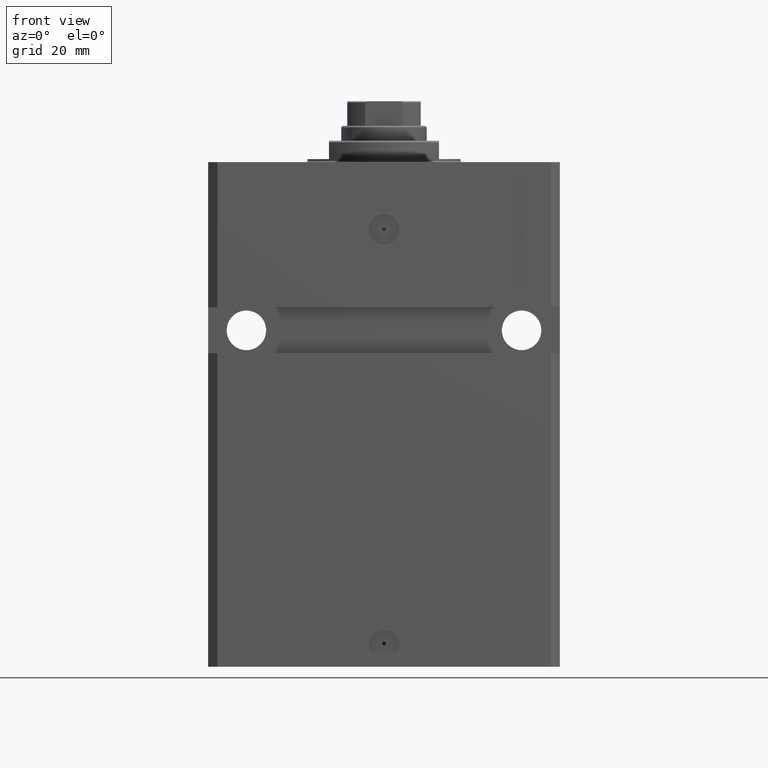
[diagram: clean part render]
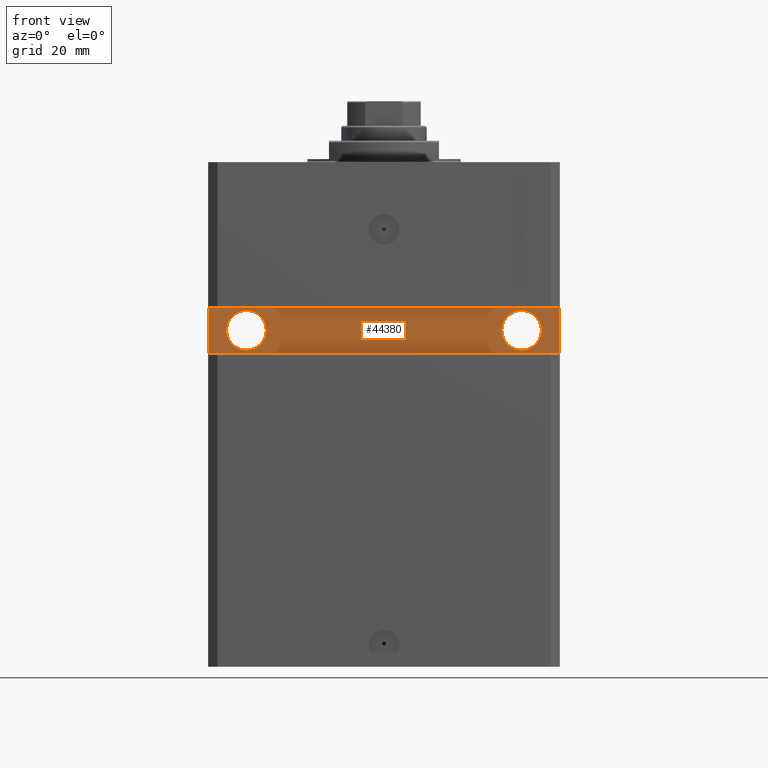
[diagram: same view with one face highlighted and labeled with its STEP entity id]
A machine part, front view. The second image highlights one B-rep face of the part: STEP entity #44380.
In plain terms, the highlighted planar face has unit normal (0, -1, 0).
Its self-contained STEP definition (entity closure, byte-faithful):
#71 = EDGE_CURVE ( 'NONE', #9435, #27141, #9497, .T. ) ;
#757 = ORIENTED_EDGE ( 'NONE', *, *, #71, .F. ) ;
#2630 = DIRECTION ( 'NONE',  ( 1.000000000000000000, 1.206764157201257045E-16, 0.000000000000000000 ) ) ;
#3074 = DIRECTION ( 'NONE',  ( 0.000000000000000000, 0.000000000000000000, -1.000000000000000000 ) ) ;
#3200 = EDGE_CURVE ( 'NONE', #27141, #9435, #18995, .T. ) ;
#3924 = CARTESIAN_POINT ( 'NONE',  ( 57.50000000000000711, -39.99999999999998579, -62.49999999999999289 ) ) ;
#7083 = AXIS2_PLACEMENT_3D ( 'NONE', #32059, #13652, #17609 ) ;
#7158 = ORIENTED_EDGE ( 'NONE', *, *, #3200, .F. ) ;
#8170 = CARTESIAN_POINT ( 'NONE',  ( -44.99999999999998579, -40.00000000000000000, -55.00000000000001421 ) ) ;
#8652 = DIRECTION ( 'NONE',  ( 1.000000000000000000, 0.000000000000000000, 0.000000000000000000 ) ) ;
#9340 = CARTESIAN_POINT ( 'NONE',  ( 4.842396851142260860E-15, -39.99999999999999289, 0.000000000000000000 ) ) ;
#9435 = VERTEX_POINT ( 'NONE', #44839 ) ;
#9497 = CIRCLE ( 'NONE', #38874, 6.499999999999999112 ) ;
#9927 = ORIENTED_EDGE ( 'NONE', *, *, #21548, .T. ) ;
#10098 = FACE_BOUND ( 'NONE', #30525, .T. ) ;
#10413 = CARTESIAN_POINT ( 'NONE',  ( -57.50000000000002132, -40.00000000000000000, -47.50000000000000711 ) ) ;
#12133 = CARTESIAN_POINT ( 'NONE',  ( 57.50000000000000711, -39.99999999999998579, -47.49999999999998579 ) ) ;
#12184 = EDGE_CURVE ( 'NONE', #24167, #47324, #21224, .T. ) ;
#13652 = DIRECTION ( 'NONE',  ( 7.680174481697265102E-17, -1.000000000000000000, 0.000000000000000000 ) ) ;
#14284 = DIRECTION ( 'NONE',  ( 1.000000000000000000, 0.000000000000000000, 0.000000000000000000 ) ) ;
#14484 = DIRECTION ( 'NONE',  ( 0.000000000000000000, 0.000000000000000000, 1.000000000000000000 ) ) ;
#14523 = CARTESIAN_POINT ( 'NONE',  ( -44.99999999999998579, -40.00000000000000000, -55.00000000000001421 ) ) ;
#14780 = AXIS2_PLACEMENT_3D ( 'NONE', #9340, #40693, #2630 ) ;
#15824 = EDGE_LOOP ( 'NONE', ( #9927, #28269, #38724, #28810 ) ) ;
#16151 = EDGE_LOOP ( 'NONE', ( #7158, #757 ) ) ;
#17609 = DIRECTION ( 'NONE',  ( 1.000000000000000000, 0.000000000000000000, 0.000000000000000000 ) ) ;
#18995 = CIRCLE ( 'NONE', #7083, 6.499999999999999112 ) ;
#19913 = CARTESIAN_POINT ( 'NONE',  ( 51.50000000000001421, -39.99999999999999289, -55.00000000000000000 ) ) ;
#20175 = AXIS2_PLACEMENT_3D ( 'NONE', #14523, #32949, #14284 ) ;
#21132 = CARTESIAN_POINT ( 'NONE',  ( -51.49999999999998579, -40.00000000000000000, -55.00000000000001421 ) ) ;
#21224 = LINE ( 'NONE', #21474, #41547 ) ;
#21474 = CARTESIAN_POINT ( 'NONE',  ( -57.50000000000002132, -40.00000000000000000, -47.50000000000000711 ) ) ;
#21508 = FACE_BOUND ( 'NONE', #16151, .T. ) ;
#21548 = EDGE_CURVE ( 'NONE', #47324, #49134, #45034, .T. ) ;
#21718 = EDGE_CURVE ( 'NONE', #42836, #27034, #43342, .T. ) ;
#23365 = CIRCLE ( 'NONE', #20175, 6.499999999999999112 ) ;
#24051 = DIRECTION ( 'NONE',  ( 7.680174481697265102E-17, -1.000000000000000000, 0.000000000000000000 ) ) ;
#24167 = VERTEX_POINT ( 'NONE', #10413 ) ;
#25933 = CARTESIAN_POINT ( 'NONE',  ( 57.50000000000000711, -39.99999999999998579, -62.49999999999999289 ) ) ;
#26173 = LINE ( 'NONE', #25933, #40563 ) ;
#26879 = EDGE_CURVE ( 'NONE', #32538, #24167, #49123, .T. ) ;
#27034 = VERTEX_POINT ( 'NONE', #47100 ) ;
#27141 = VERTEX_POINT ( 'NONE', #19913 ) ;
#27302 = DIRECTION ( 'NONE',  ( 1.000000000000000000, 0.000000000000000000, 0.000000000000000000 ) ) ;
#27316 = DIRECTION ( 'NONE',  ( 1.101411730780568590E-16, -1.000000000000000000, 0.000000000000000000 ) ) ;
#27777 = EDGE_CURVE ( 'NONE', #49134, #32538, #26173, .T. ) ;
#28269 = ORIENTED_EDGE ( 'NONE', *, *, #27777, .T. ) ;
#28810 = ORIENTED_EDGE ( 'NONE', *, *, #12184, .T. ) ;
#29934 = ORIENTED_EDGE ( 'NONE', *, *, #21718, .F. ) ;
#30525 = EDGE_LOOP ( 'NONE', ( #44207, #29934 ) ) ;
#31525 = CARTESIAN_POINT ( 'NONE',  ( 45.00000000000001421, -39.99999999999999289, -55.00000000000000000 ) ) ;
#32059 = CARTESIAN_POINT ( 'NONE',  ( 45.00000000000001421, -39.99999999999999289, -55.00000000000000000 ) ) ;
#32459 = FACE_OUTER_BOUND ( 'NONE', #15824, .T. ) ;
#32517 = CARTESIAN_POINT ( 'NONE',  ( -57.50000000000002132, -40.00000000000000000, -62.50000000000000000 ) ) ;
#32538 = VERTEX_POINT ( 'NONE', #12133 ) ;
#32949 = DIRECTION ( 'NONE',  ( 1.101411730780568590E-16, -1.000000000000000000, 0.000000000000000000 ) ) ;
#34929 = VECTOR ( 'NONE', #38423, 1000.000000000000000 ) ;
#36821 = CARTESIAN_POINT ( 'NONE',  ( -57.50000000000002132, -40.00000000000000000, -62.50000000000000000 ) ) ;
#36957 = PLANE ( 'NONE',  #14780 ) ;
#37799 = DIRECTION ( 'NONE',  ( 1.000000000000000000, 1.206764157201257045E-16, 6.033820786006285224E-17 ) ) ;
#38423 = DIRECTION ( 'NONE',  ( -1.000000000000000000, -1.206764157201257045E-16, -1.810146235801885321E-16 ) ) ;
#38724 = ORIENTED_EDGE ( 'NONE', *, *, #26879, .T. ) ;
#38874 = AXIS2_PLACEMENT_3D ( 'NONE', #31525, #24051, #27302 ) ;
#39885 = EDGE_CURVE ( 'NONE', #27034, #42836, #23365, .T. ) ;
#40563 = VECTOR ( 'NONE', #14484, 1000.000000000000000 ) ;
#40693 = DIRECTION ( 'NONE',  ( 1.206764157201257045E-16, -1.000000000000000000, 0.000000000000000000 ) ) ;
#40964 = AXIS2_PLACEMENT_3D ( 'NONE', #8170, #27316, #8652 ) ;
#41547 = VECTOR ( 'NONE', #3074, 1000.000000000000000 ) ;
#42836 = VERTEX_POINT ( 'NONE', #21132 ) ;
#43342 = CIRCLE ( 'NONE', #40964, 6.499999999999999112 ) ;
#44207 = ORIENTED_EDGE ( 'NONE', *, *, #39885, .F. ) ;
#44380 = ADVANCED_FACE ( 'NONE', ( #21508, #10098, #32459 ), #36957, .T. ) ;
#44839 = CARTESIAN_POINT ( 'NONE',  ( 38.50000000000001421, -39.99999999999999289, -55.00000000000000000 ) ) ;
#44948 = VECTOR ( 'NONE', #37799, 1000.000000000000000 ) ;
#45034 = LINE ( 'NONE', #36821, #44948 ) ;
#45407 = CARTESIAN_POINT ( 'NONE',  ( 57.50000000000000711, -39.99999999999998579, -47.49999999999998579 ) ) ;
#47100 = CARTESIAN_POINT ( 'NONE',  ( -38.49999999999998579, -40.00000000000000000, -55.00000000000001421 ) ) ;
#47324 = VERTEX_POINT ( 'NONE', #32517 ) ;
#49123 = LINE ( 'NONE', #45407, #34929 ) ;
#49134 = VERTEX_POINT ( 'NONE', #3924 ) ;